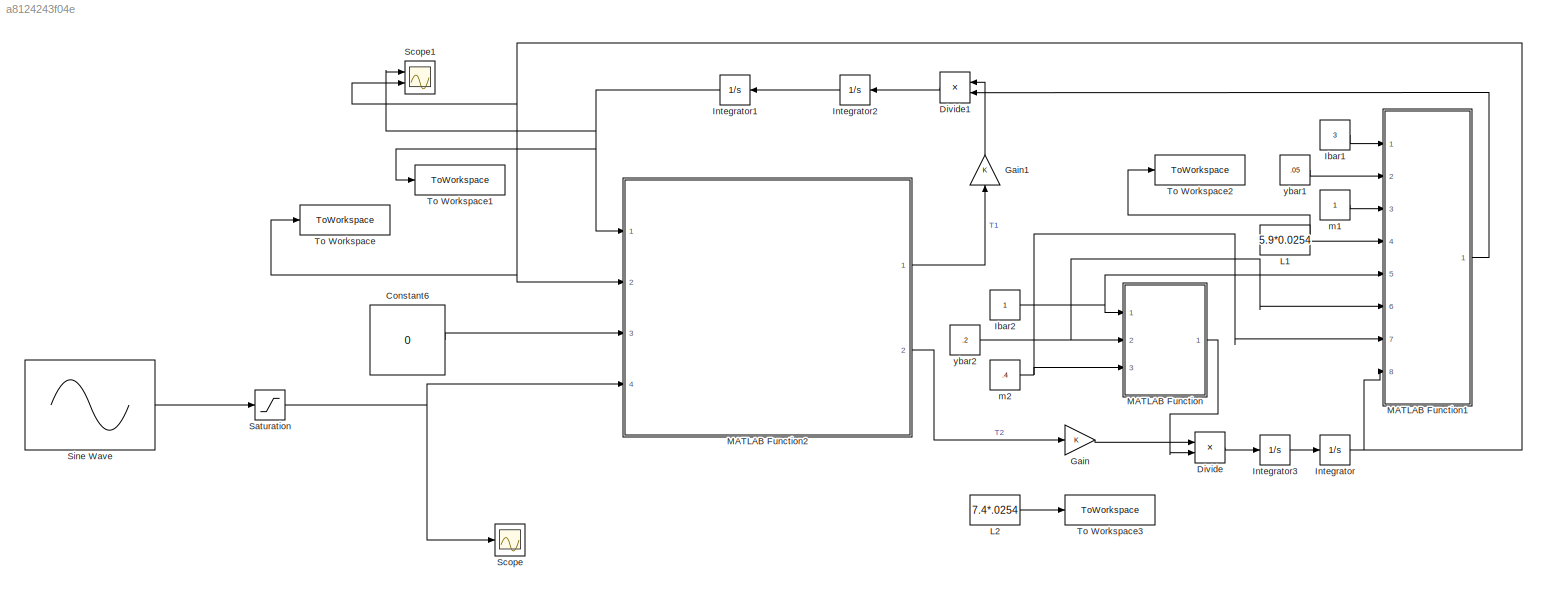
MODEL slx_a8124243f04e
KIND model
CONFIG AbsTol = auto
CONFIG EnableMultiTasking = off
CONFIG FixedStep = .01
CONFIG MaxStep = auto
CONFIG MinStep = auto
CONFIG RelTol = 1e-3
CONFIG SampleTimeConstraint = Unconstrained
CONFIG SolverName = FixedStepAuto
CONFIG StartTime = 0.0
CONFIG StopTime = pi
BLOCK [Constant] Constant6
  Value = 0
BLOCK [Product] Divide
  Inputs = */
  Ports = [2, 1]
BLOCK [Product] Divide1
  Inputs = */
  Ports = [2, 1]
BLOCK [Gain] Gain
BLOCK [Gain] Gain1
  NameLocation = right
BLOCK [Constant] Ibar1
  Value = 3
BLOCK [Constant] Ibar2
BLOCK [Integrator] Integrator
  InitialCondition = 1.4
  Ports = [1, 1]
BLOCK [Integrator] Integrator1
  InitialCondition = -.7
  Ports = [1, 1]
BLOCK [Integrator] Integrator2
  Ports = [1, 1]
BLOCK [Integrator] Integrator3
  Ports = [1, 1]
BLOCK [Constant] L1
  Value = 5.9*0.0254
BLOCK [Constant] L2
  Value = 7.4*.0254
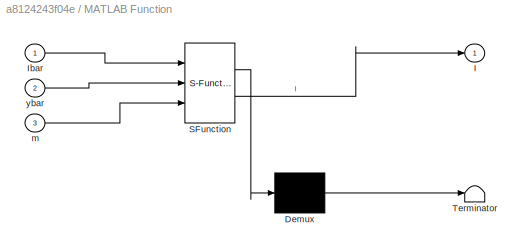
BLOCK [SubSystem] MATLAB Function
  ErrorFcn = Stateflow.Translate.translate
  PermitHierarchicalResolution = ExplicitOnly
  Ports = [3, 1]
  RequestExecContextInheritance = off
  SFBlockType = MATLAB Function
  TreatAsAtomicUnit = on
BLOCK [Demux] MATLAB Function/ Demux 
  Outputs = 1
  Ports = [1, 1]
BLOCK [S-Function] MATLAB Function/ SFunction 
  EnableBusSupport = on
  FunctionName = sf_sfun
  PortCounts = [3 2]
  Ports = [3, 2]
  SFcnIsStateOwnerBlock = off
  SFunctionDeploymentMode = off
  Tag = Stateflow S-Function 2
BLOCK [Terminator] MATLAB Function/ Terminator 
BLOCK [Outport] MATLAB Function/I
BLOCK [Inport] MATLAB Function/Ibar
BLOCK [Inport] MATLAB Function/m
  Port = 3
BLOCK [Inport] MATLAB Function/ybar
  Port = 2
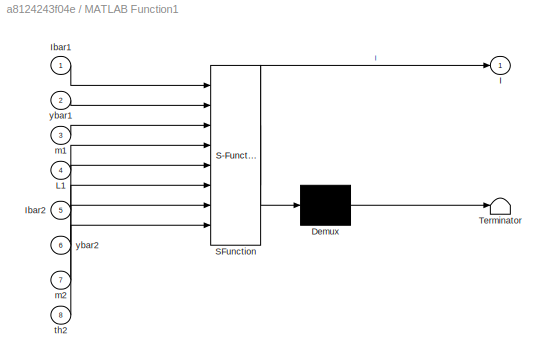
BLOCK [SubSystem] MATLAB Function1
  ErrorFcn = Stateflow.Translate.translate
  PermitHierarchicalResolution = ExplicitOnly
  Ports = [8, 1]
  RequestExecContextInheritance = off
  SFBlockType = MATLAB Function
  TreatAsAtomicUnit = on
BLOCK [Demux] MATLAB Function1/ Demux 
  Outputs = 1
  Ports = [1, 1]
BLOCK [S-Function] MATLAB Function1/ SFunction 
  EnableBusSupport = on
  FunctionName = sf_sfun
  PortCounts = [8 2]
  Ports = [8, 2]
  SFcnIsStateOwnerBlock = off
  SFunctionDeploymentMode = off
  Tag = Stateflow S-Function 1
BLOCK [Terminator] MATLAB Function1/ Terminator 
BLOCK [Outport] MATLAB Function1/I
BLOCK [Inport] MATLAB Function1/Ibar1
BLOCK [Inport] MATLAB Function1/Ibar2
  Port = 5
BLOCK [Inport] MATLAB Function1/L1
  Port = 4
BLOCK [Inport] MATLAB Function1/m1
  Port = 3
BLOCK [Inport] MATLAB Function1/m2
  Port = 7
BLOCK [Inport] MATLAB Function1/th2
  Port = 8
BLOCK [Inport] MATLAB Function1/ybar1
  Port = 2
BLOCK [Inport] MATLAB Function1/ybar2
  Port = 6
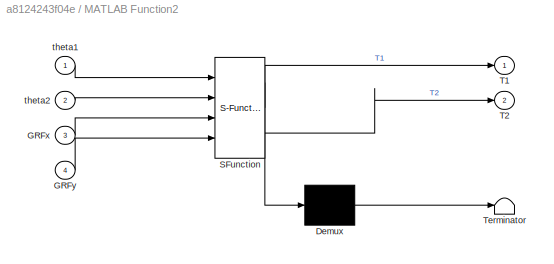
BLOCK [SubSystem] MATLAB Function2
  ErrorFcn = Stateflow.Translate.translate
  PermitHierarchicalResolution = ExplicitOnly
  Ports = [4, 2]
  RequestExecContextInheritance = off
  SFBlockType = MATLAB Function
  TreatAsAtomicUnit = on
BLOCK [Demux] MATLAB Function2/ Demux 
  Outputs = 1
  Ports = [1, 1]
BLOCK [S-Function] MATLAB Function2/ SFunction 
  EnableBusSupport = on
  FunctionName = sf_sfun
  PortCounts = [4 3]
  Ports = [4, 3]
  SFcnIsStateOwnerBlock = off
  SFunctionDeploymentMode = off
  Tag = Stateflow S-Function 7
BLOCK [Terminator] MATLAB Function2/ Terminator 
BLOCK [Inport] MATLAB Function2/GRFx
  Port = 3
BLOCK [Inport] MATLAB Function2/GRFy
  Port = 4
BLOCK [Outport] MATLAB Function2/T1
BLOCK [Outport] MATLAB Function2/T2
  Port = 2
BLOCK [Inport] MATLAB Function2/theta1
BLOCK [Inport] MATLAB Function2/theta2
  Port = 2
BLOCK [Saturate] Saturation
  LowerLimit = 0
  UpperLimit = inf
BLOCK [Scope] Scope
  Floating = off
  NumInputPorts = 1
  Ports = [1]
  ScopeSpecificationString = Simulink.scopes.TimeScopeBlockCfg('CurrentConfiguration', extmgr.ConfigurationSet(extmgr.Configuration('Core','General UI',true),extmgr.Configuration('Core','Source UI',true),extmgr.Configuration('Sources','WiredSimulink',true),extmgr.Configuration('Visuals','Time Domain',true,'SerializedDisplays',{struct('MinYLimReal','-0.25','MaxYLimReal','2.25','YLabelReal','','MinYLimMag','0.00000','MaxYLimMag...<+1312ch>
BLOCK [Scope] Scope1
  Floating = off
  NumInputPorts = 2
  Ports = [2]
  ScopeSpecificationString = Simulink.scopes.TimeScopeBlockCfg('CurrentConfiguration', extmgr.ConfigurationSet(extmgr.Configuration('Core','General UI',true),extmgr.Configuration('Core','Source UI',true),extmgr.Configuration('Sources','WiredSimulink',true,'DataLoggingVariableName','ScopeData1'),extmgr.Configuration('Visuals','Time Domain',true,'SerializedDisplays',{struct('MinYLimReal','-0.97512','MaxYLimReal','1.6639','YLabe...<+1416ch>
BLOCK [Sin] Sine Wave
  Amplitude = 2
  Ports = [0, 1]
BLOCK [ToWorkspace] To Workspace
  FixptAsFi = on
  MaxDataPoints = inf
  Ports = [1]
  SampleTime = -1
  VariableName = th2
BLOCK [ToWorkspace] To Workspace1
  FixptAsFi = on
  MaxDataPoints = inf
  Ports = [1]
  SampleTime = -1
  VariableName = th1
BLOCK [ToWorkspace] To Workspace2
  FixptAsFi = on
  MaxDataPoints = inf
  Ports = [1]
  SampleTime = -1
  VariableName = L1
BLOCK [ToWorkspace] To Workspace3
  FixptAsFi = on
  MaxDataPoints = inf
  Ports = [1]
  SampleTime = -1
  VariableName = L2
BLOCK [Constant] m1
BLOCK [Constant] m2
  Value = .4
BLOCK [Constant] ybar1
  Value = .05
BLOCK [Constant] ybar2
  Value = .2
LINE Constant6:1 -> MATLAB Function2:3
LINE Divide1:1 -> Integrator2:1
LINE Divide:1 -> Integrator3:1
LINE Gain1:1 -> Divide1:1
LINE Gain:1 -> Divide:1
LINE Ibar1:1 -> MATLAB Function1:1
NET Ibar2:1 -> MATLAB Function1:5, MATLAB Function:1
NET Integrator1:1 -> MATLAB Function2:1, Scope1:1, To Workspace1:1
LINE Integrator2:1 -> Integrator1:1
LINE Integrator3:1 -> Integrator:1
NET Integrator:1 -> MATLAB Function1:8, MATLAB Function2:2, Scope1:2, To Workspace:1
NET L1:1 -> MATLAB Function1:4, To Workspace2:1
LINE L2:1 -> To Workspace3:1
LINE MATLAB Function1:1 -> Divide1:2
LINE MATLAB Function2:1 -> Gain1:1
LINE MATLAB Function2:2 -> Gain:1
LINE MATLAB Function:1 -> Divide:2
NET Saturation:1 -> MATLAB Function2:4, Scope:1
LINE Sine Wave:1 -> Saturation:1
LINE m1:1 -> MATLAB Function1:3
NET m2:1 -> MATLAB Function1:7, MATLAB Function:3
LINE ybar1:1 -> MATLAB Function1:2
NET ybar2:1 -> MATLAB Function1:6, MATLAB Function:2
note: NET lines group one-source signal fan-out (src -> all destinations, sorted); 1:1 wires keep LINE
CHART MATLAB Function1 states=1 transitions=1
  STATE_LABEL 'eML_blk_kernel()'
  STATE_LABEL 'SCRIPT:\nfunction I = fcn(Ibar1,ybar1,m1,L1,Ibar2, ybar2,m2,th2)\nI = Ibar1 + ybar1^2 * m1 + Ibar2 + m2*sqrt((L1 + ybar2*cos(th2))^2 + (ybar2*sin(th2))^2);\n'
CHART MATLAB Function states=1 transitions=1
  STATE_LABEL 'eML_blk_kernel()'
  STATE_LABEL 'SCRIPT:\nfunction I = fcn(Ibar,ybar,m)\nI = Ibar + ybar^2 * m\n'
CHART MATLAB Function2 states=1 transitions=1
  STATE_LABEL 'eML_blk_kernel()'
  STATE_LABEL 'SCRIPT:\nfunction [T1, T2] = getTorque(theta1, theta2, GRFx, GRFy)\n% t = 1:0.05:4;\n% f = 0.5;\n% y=sin(2*pi*f*t);% Generate Sine Wave  \n% y(y<0) = 0;                       % Rectified Sine Wave\n% plot(t,y);\n\nF = [GRFx\n     GRFy];\n\nL1 = 5.9 * 0.0254; \nL2 = 7.4 * 0.0254; \nJ = [(L1 * cos(theta1) + L2 * cos(theta1+theta2)) (L2 * cos(theta1+theta2))\n         (-L1 * sin(theta1) - L2 * sin(theta1+theta2)) ...<+85ch>'
CHART  states=0 transitions=0
CHART  states=0 transitions=0
CHART  states=0 transitions=0
